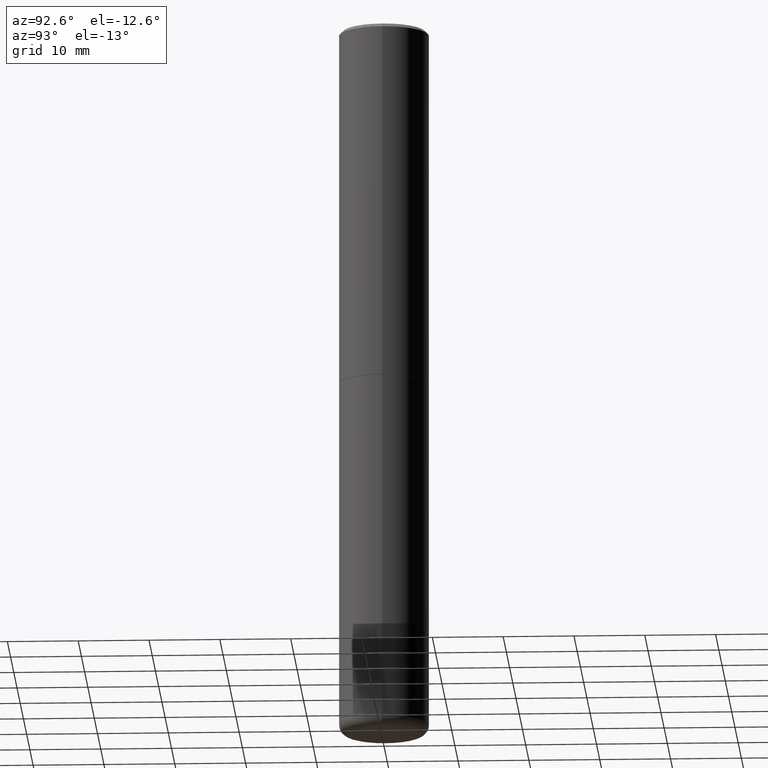
[diagram: clean part render]
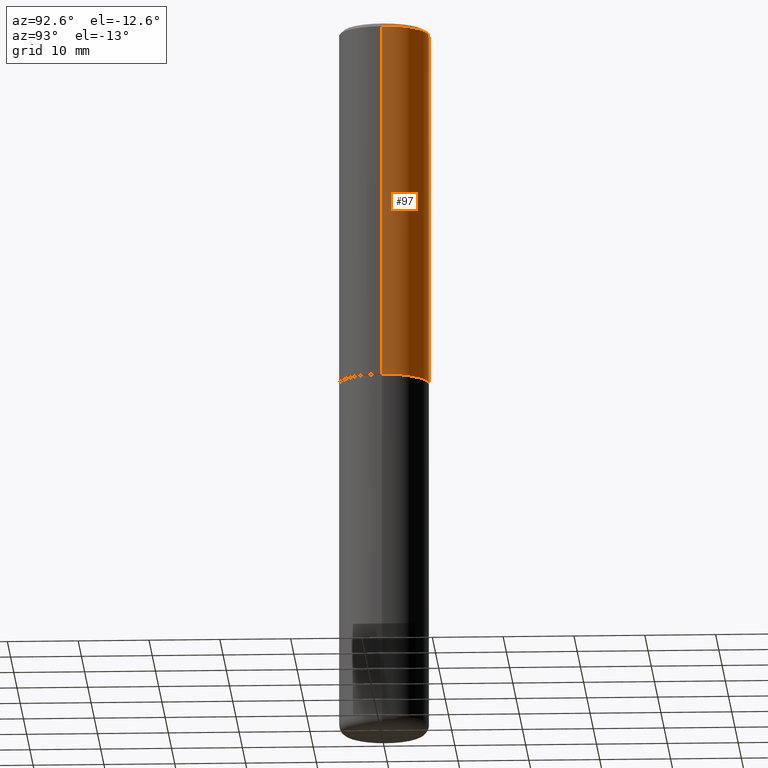
[diagram: same view with one face highlighted and labeled with its STEP entity id]
A machine part, auxiliary view. The second image highlights one B-rep face of the part: STEP entity #97.
In plain terms, the highlighted cylindrical surface (partial cylindrical patch) has radius 6.35 mm, axis along (-0, 0, 1).
Its self-contained STEP definition (entity closure, byte-faithful):
#11 = AXIS2_PLACEMENT_3D ( 'NONE', #295, #219, #253 ) ;
#15 = EDGE_CURVE ( 'NONE', #256, #72, #311, .T. ) ;
#26 = LINE ( 'NONE', #145, #133 ) ;
#39 = VERTEX_POINT ( 'NONE', #227 ) ;
#42 = CYLINDRICAL_SURFACE ( 'NONE', #79, 0.2499999999999998612 ) ;
#44 = CARTESIAN_POINT ( 'NONE',  ( -0.2499999999999997224, 1.675911042644701605E-15, -0.02000000000000005593 ) ) ;
#52 = DIRECTION ( 'NONE',  ( -2.445468806185136877E-29, 3.491481338843145188E-15, 1.000000000000000000 ) ) ;
#62 = CARTESIAN_POINT ( 'NONE',  ( 0.2500000000000000000, -8.725211865769014047E-15, -1.998999999999999888 ) ) ;
#72 = VERTEX_POINT ( 'NONE', #178 ) ;
#79 = AXIS2_PLACEMENT_3D ( 'NONE', #237, #420, #281 ) ;
#95 = ORIENTED_EDGE ( 'NONE', *, *, #418, .F. ) ;
#97 = ADVANCED_FACE ( 'NONE', ( #136 ), #42, .T. ) ;
#120 = ORIENTED_EDGE ( 'NONE', *, *, #15, .T. ) ;
#133 = VECTOR ( 'NONE', #52, 39.37007874015748143 ) ;
#136 = FACE_OUTER_BOUND ( 'NONE', #267, .T. ) ;
#145 = CARTESIAN_POINT ( 'NONE',  ( -0.2499999999999998612, 1.776356839400249479E-15, -1.229733772563725745E-29 ) ) ;
#152 = DIRECTION ( 'NONE',  ( 1.000000000000000000, -6.982962677686266711E-15, 0.000000000000000000 ) ) ;
#178 = CARTESIAN_POINT ( 'NONE',  ( -0.2499999999999999722, -1.748293572161904475E-15, -1.998999999999999888 ) ) ;
#181 = CIRCLE ( 'NONE', #11, 0.2499999999999997224 ) ;
#195 = ORIENTED_EDGE ( 'NONE', *, *, #355, .T. ) ;
#201 = VERTEX_POINT ( 'NONE', #44 ) ;
#219 = DIRECTION ( 'NONE',  ( -2.445468806185136597E-29, 3.491481338843145583E-15, 1.000000000000000000 ) ) ;
#220 = DIRECTION ( 'NONE',  ( -2.445468806185136877E-29, 3.491481338843145188E-15, 1.000000000000000000 ) ) ;
#227 = CARTESIAN_POINT ( 'NONE',  ( 0.2499999999999997224, -1.784954126219744217E-15, -0.02000000000000005593 ) ) ;
#233 = CARTESIAN_POINT ( 'NONE',  ( 4.888492143564087591E-29, -6.979471196347447369E-15, -1.998999999999999888 ) ) ;
#237 = CARTESIAN_POINT ( 'NONE',  ( 0.000000000000000000, 0.000000000000000000, 0.000000000000000000 ) ) ;
#253 = DIRECTION ( 'NONE',  ( 1.000000000000000000, -6.982962677686266711E-15, 0.000000000000000000 ) ) ;
#256 = VERTEX_POINT ( 'NONE', #62 ) ;
#267 = EDGE_LOOP ( 'NONE', ( #120, #195, #95, #411 ) ) ;
#281 = DIRECTION ( 'NONE',  ( 1.000000000000000000, -6.982962677686266711E-15, 4.876176775795935793E-29 ) ) ;
#295 = CARTESIAN_POINT ( 'NONE',  ( 4.890937612370287172E-31, -6.982962677686310098E-17, -0.02000000000000005593 ) ) ;
#311 = CIRCLE ( 'NONE', #384, 0.2500000000000000000 ) ;
#312 = VECTOR ( 'NONE', #220, 39.37007874015748143 ) ;
#329 = EDGE_CURVE ( 'NONE', #256, #39, #359, .T. ) ;
#355 = EDGE_CURVE ( 'NONE', #72, #201, #26, .T. ) ;
#359 = LINE ( 'NONE', #399, #312 ) ;
#376 = DIRECTION ( 'NONE',  ( -2.445468806185136597E-29, 3.491481338843145583E-15, 1.000000000000000000 ) ) ;
#384 = AXIS2_PLACEMENT_3D ( 'NONE', #233, #376, #152 ) ;
#399 = CARTESIAN_POINT ( 'NONE',  ( 0.2499999999999998612, -1.745740669421565692E-15, 1.219044193948983248E-29 ) ) ;
#411 = ORIENTED_EDGE ( 'NONE', *, *, #329, .F. ) ;
#418 = EDGE_CURVE ( 'NONE', #39, #201, #181, .T. ) ;
#420 = DIRECTION ( 'NONE',  ( -2.445468806185136597E-29, 3.491481338843145583E-15, 1.000000000000000000 ) ) ;